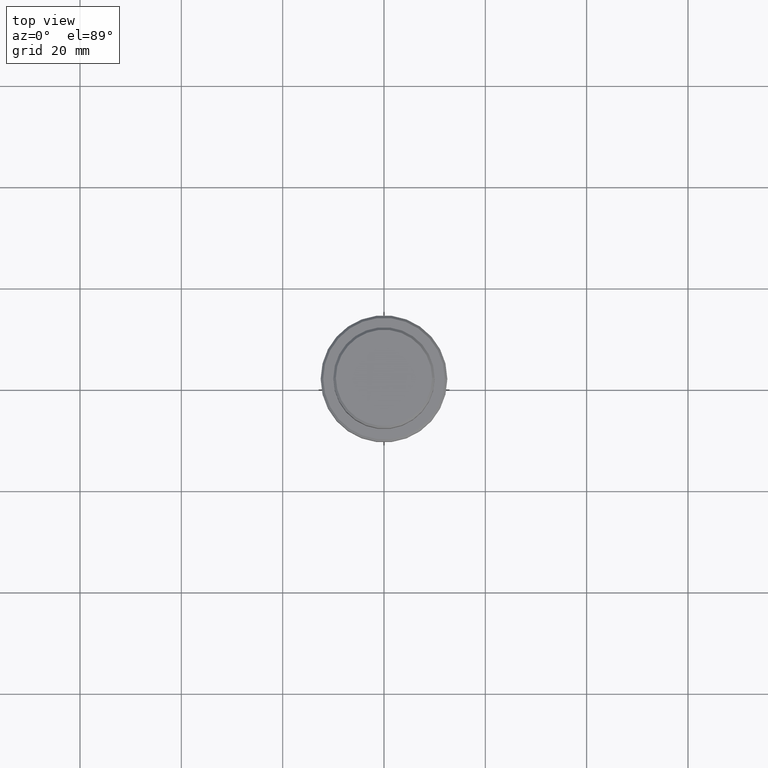
[diagram: clean part render]
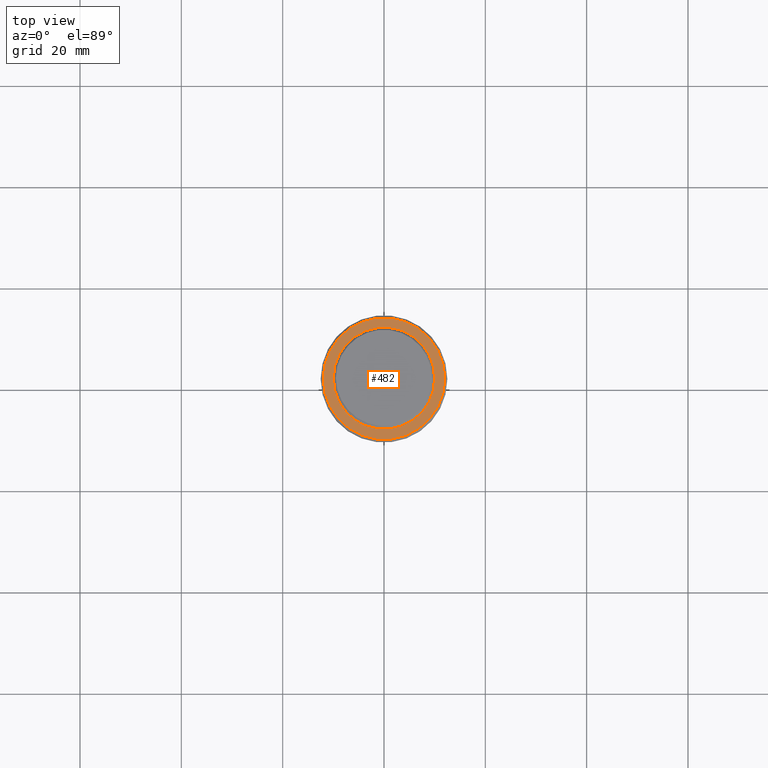
[diagram: same view with one face highlighted and labeled with its STEP entity id]
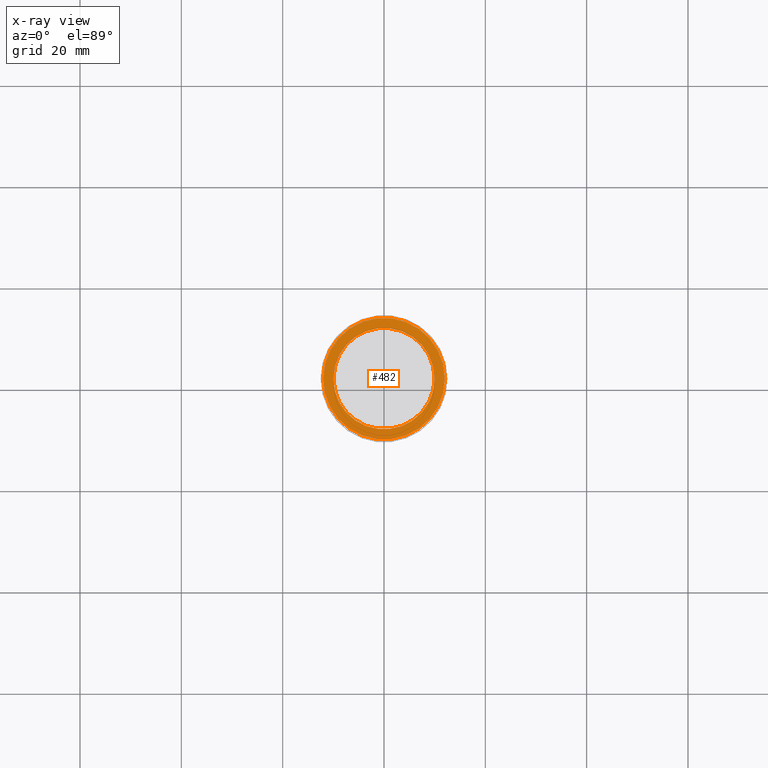
[diagram: x-ray of the same camera — body ghosted, the highlighted face saturated]
A machine part, top view. The second image highlights one B-rep face of the part: STEP entity #482.
The next image is the same camera in x-ray: the body ghosted, the highlighted face saturated — about 0% of this face is hidden behind the body in this view.
In plain terms, the highlighted planar face has unit normal (0, -0, 1).
Its self-contained STEP definition (entity closure, byte-faithful):
#36 = ORIENTED_EDGE ( 'NONE', *, *, #408, .T. ) ;
#132 = CARTESIAN_POINT ( 'NONE',  ( 0.000000000000000000, 0.000000000000000000, -9.000000000000000000 ) ) ;
#216 = AXIS2_PLACEMENT_3D ( 'NONE', #297, #479, #798 ) ;
#229 = DIRECTION ( 'NONE',  ( 1.000000000000000000, 0.000000000000000000, 0.000000000000000000 ) ) ;
#231 = EDGE_CURVE ( 'NONE', #605, #812, #1395, .T. ) ;
#272 = EDGE_CURVE ( 'NONE', #928, #347, #1123, .T. ) ;
#295 = CARTESIAN_POINT ( 'NONE',  ( -11.99999999999998224, 0.000000000000000000, -9.000000000000000000 ) ) ;
#297 = CARTESIAN_POINT ( 'NONE',  ( 0.000000000000000000, 0.000000000000000000, -9.000000000000000000 ) ) ;
#339 = CARTESIAN_POINT ( 'NONE',  ( 9.999999999999992895, 0.000000000000000000, -9.000000000000000000 ) ) ;
#347 = VERTEX_POINT ( 'NONE', #365 ) ;
#356 = CARTESIAN_POINT ( 'NONE',  ( 0.000000000000000000, 9.499999999999992895, -9.000000000000000000 ) ) ;
#365 = CARTESIAN_POINT ( 'NONE',  ( -9.999999999999992895, 1.224646799147352468E-15, -9.000000000000000000 ) ) ;
#371 = CARTESIAN_POINT ( 'NONE',  ( 0.000000000000000000, 0.000000000000000000, -9.000000000000000000 ) ) ;
#408 = EDGE_CURVE ( 'NONE', #812, #605, #1373, .T. ) ;
#457 = DIRECTION ( 'NONE',  ( 1.000000000000000000, 0.000000000000000000, 0.000000000000000000 ) ) ;
#479 = DIRECTION ( 'NONE',  ( 0.000000000000000000, 0.000000000000000000, -1.000000000000000000 ) ) ;
#482 = ADVANCED_FACE ( 'NONE', ( #702, #795 ), #1136, .T. ) ;
#489 = DIRECTION ( 'NONE',  ( 1.000000000000000000, 0.000000000000000000, 0.000000000000000000 ) ) ;
#588 = DIRECTION ( 'NONE',  ( 1.000000000000000000, 0.000000000000000000, 0.000000000000000000 ) ) ;
#605 = VERTEX_POINT ( 'NONE', #295 ) ;
#656 = CARTESIAN_POINT ( 'NONE',  ( 11.99999999999998224, 1.500192328955506748E-15, -9.000000000000000000 ) ) ;
#672 = ORIENTED_EDGE ( 'NONE', *, *, #1166, .T. ) ;
#698 = ORIENTED_EDGE ( 'NONE', *, *, #231, .T. ) ;
#702 = FACE_OUTER_BOUND ( 'NONE', #736, .T. ) ;
#736 = EDGE_LOOP ( 'NONE', ( #698, #36 ) ) ;
#757 = AXIS2_PLACEMENT_3D ( 'NONE', #371, #1230, #489 ) ;
#795 = FACE_BOUND ( 'NONE', #1276, .T. ) ;
#798 = DIRECTION ( 'NONE',  ( 1.000000000000000000, 0.000000000000000000, 0.000000000000000000 ) ) ;
#812 = VERTEX_POINT ( 'NONE', #656 ) ;
#842 = AXIS2_PLACEMENT_3D ( 'NONE', #132, #1204, #229 ) ;
#928 = VERTEX_POINT ( 'NONE', #339 ) ;
#958 = AXIS2_PLACEMENT_3D ( 'NONE', #1310, #1293, #457 ) ;
#1123 = CIRCLE ( 'NONE', #842, 9.999999999999992895 ) ;
#1136 = PLANE ( 'NONE',  #1281 ) ;
#1166 = EDGE_CURVE ( 'NONE', #347, #928, #1243, .T. ) ;
#1176 = ORIENTED_EDGE ( 'NONE', *, *, #272, .T. ) ;
#1204 = DIRECTION ( 'NONE',  ( 0.000000000000000000, 0.000000000000000000, -1.000000000000000000 ) ) ;
#1230 = DIRECTION ( 'NONE',  ( -0.000000000000000000, -0.000000000000000000, 1.000000000000000000 ) ) ;
#1243 = CIRCLE ( 'NONE', #216, 9.999999999999992895 ) ;
#1276 = EDGE_LOOP ( 'NONE', ( #1176, #672 ) ) ;
#1281 = AXIS2_PLACEMENT_3D ( 'NONE', #356, #1335, #588 ) ;
#1293 = DIRECTION ( 'NONE',  ( -0.000000000000000000, -0.000000000000000000, 1.000000000000000000 ) ) ;
#1310 = CARTESIAN_POINT ( 'NONE',  ( 0.000000000000000000, 0.000000000000000000, -9.000000000000000000 ) ) ;
#1335 = DIRECTION ( 'NONE',  ( 0.000000000000000000, -0.000000000000000000, 1.000000000000000000 ) ) ;
#1373 = CIRCLE ( 'NONE', #757, 11.99999999999998224 ) ;
#1395 = CIRCLE ( 'NONE', #958, 11.99999999999998224 ) ;